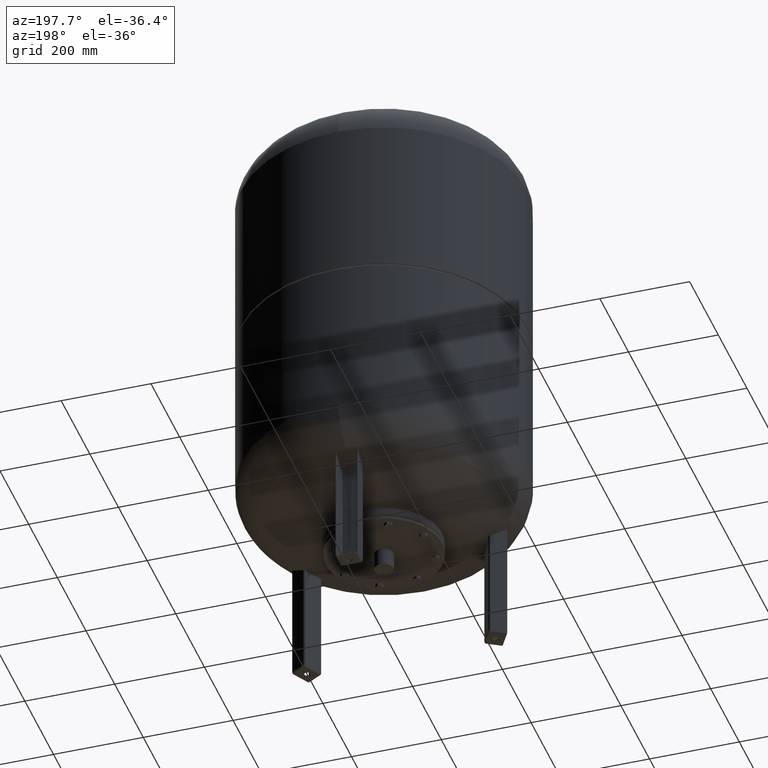
[diagram: clean part render]
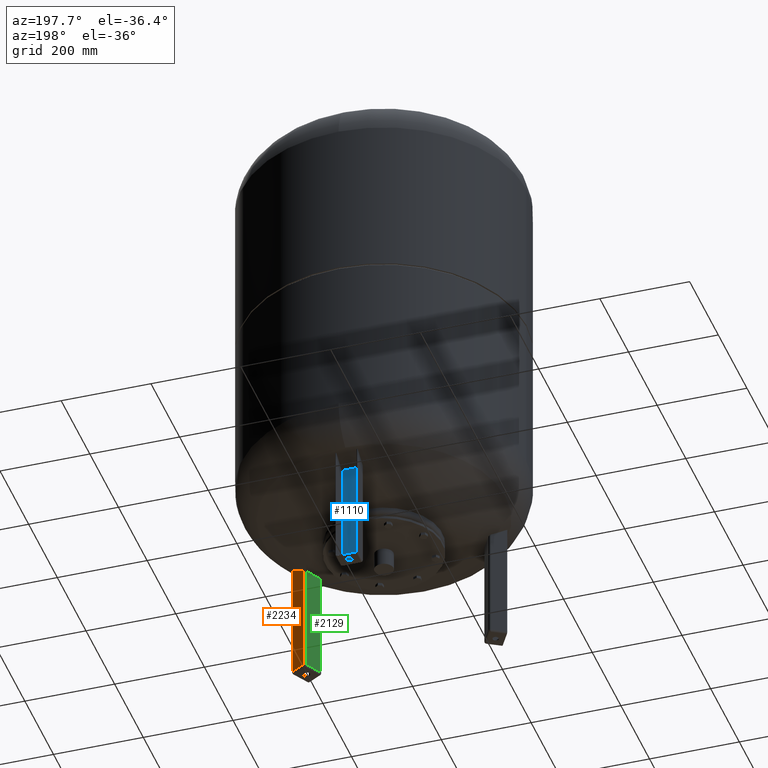
[diagram: same view with three faces highlighted in distinct colors, each labeled with its STEP entity id]
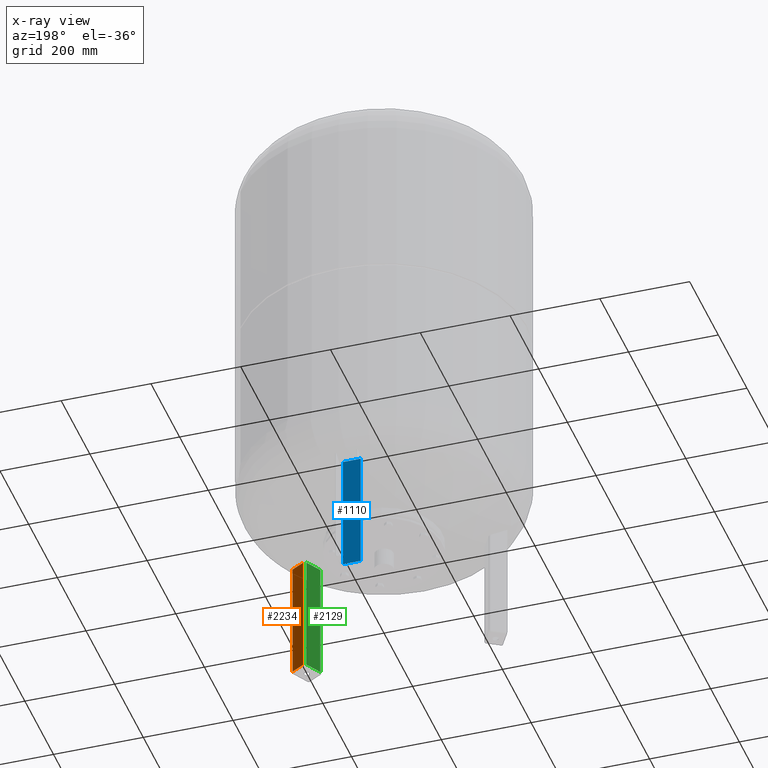
[diagram: x-ray of the same camera — body ghosted, the three highlighted faces saturated]
A machine part, auxiliary view with three faces highlighted in distinct colors.
The next image is the same camera in x-ray (body ghosted, the three faces saturated) — at least one of them is partly hidden behind the body in this view.
Their STEP definitions:

[orange] entity #2234 — the highlighted planar face has unit normal (0.5, 0.866, 0).
#1296=CARTESIAN_POINT('',(238.965643089630700,-109.099364905389110,274.0));
#1297=VERTEX_POINT('',#1296);
#1305=CARTESIAN_POINT('',(209.520779360959780,-92.099364905389081,274.0));
#1306=VERTEX_POINT('',#1305);
#1307=CARTESIAN_POINT('',(209.520779360959780,-92.099364905389081,274.0));
#1308=DIRECTION('',(0.866025403784438,-0.500000000000001,0.0));
#1309=VECTOR('',#1308,34.000000000000021);
#1310=LINE('',#1307,#1309);
#1311=EDGE_CURVE('',#1306,#1297,#1310,.T.);
#1741=CARTESIAN_POINT('',(238.965643089630700,-109.099364905389090,5.000000000000004));
#1742=VERTEX_POINT('',#1741);
#1769=CARTESIAN_POINT('',(238.965643089630700,-109.099364905389090,5.000000000000004));
#1770=DIRECTION('',(0.0,0.0,1.0));
#1771=VECTOR('',#1770,269.0);
#1772=LINE('',#1769,#1771);
#1773=EDGE_CURVE('',#1742,#1297,#1772,.T.);
#1969=CARTESIAN_POINT('',(209.520779360959780,-92.099364905389081,5.000000000000004));
#1970=VERTEX_POINT('',#1969);
#1978=CARTESIAN_POINT('',(209.520779360959780,-92.099364905389081,5.000000000000004));
#1979=DIRECTION('',(0.866025403784439,-0.500000000000000,0.0));
#1980=VECTOR('',#1979,34.000000000000014);
#1981=LINE('',#1978,#1980);
#1982=EDGE_CURVE('',#1970,#1742,#1981,.T.);
#2104=CARTESIAN_POINT('',(209.520779360959780,-92.099364905389081,5.000000000000004));
#2105=DIRECTION('',(0.0,0.0,1.0));
#2106=VECTOR('',#2105,269.0);
#2107=LINE('',#2104,#2106);
#2108=EDGE_CURVE('',#1970,#1306,#2107,.T.);
#2223=CARTESIAN_POINT('',(205.190652342037590,-89.599364905389081,4.592425E-015));
#2224=DIRECTION('',(0.500000000000000,0.866025403784438,1.836970E-016));
#2225=DIRECTION('',(-0.866025403784438,0.500000000000000,-3.059170E-032));
#2226=AXIS2_PLACEMENT_3D('',#2223,#2224,#2225);
#2227=PLANE('',#2226);
#2228=ORIENTED_EDGE('',*,*,#1773,.F.);
#2229=ORIENTED_EDGE('',*,*,#1982,.F.);
#2230=ORIENTED_EDGE('',*,*,#2108,.T.);
#2231=ORIENTED_EDGE('',*,*,#1311,.T.);
#2232=EDGE_LOOP('',(#2228,#2229,#2230,#2231));
#2233=FACE_OUTER_BOUND('',#2232,.T.);
#2234=ADVANCED_FACE('',(#2233),#2227,.T.);

[blue] entity #1110 — the highlighted planar face has unit normal (0, -1, 0).
#199=CARTESIAN_POINT('',(20.0,225.0,274.0));
#200=VERTEX_POINT('',#199);
#208=CARTESIAN_POINT('',(-20.0,225.0,274.0));
#209=VERTEX_POINT('',#208);
#210=CARTESIAN_POINT('',(-20.0,225.0,274.0));
#211=DIRECTION('',(1.0,0.0,0.0));
#212=VECTOR('',#211,40.0);
#213=LINE('',#210,#212);
#214=EDGE_CURVE('',#209,#200,#213,.T.);
#751=CARTESIAN_POINT('',(-19.999999999999996,225.0,4.500000000000004));
#752=VERTEX_POINT('',#751);
#760=CARTESIAN_POINT('',(20.000000000000004,225.0,4.499999999999996));
#761=VERTEX_POINT('',#760);
#762=CARTESIAN_POINT('',(-19.999999999999996,225.0,4.500000000000004));
#763=DIRECTION('',(1.0,0.0,0.0));
#764=VECTOR('',#763,40.0);
#765=LINE('',#762,#764);
#766=EDGE_CURVE('',#752,#761,#765,.T.);
#1083=CARTESIAN_POINT('',(20.000000000000004,225.0,4.499999999999996));
#1084=DIRECTION('',(0.0,0.0,1.0));
#1085=VECTOR('',#1084,269.500000000000000);
#1086=LINE('',#1083,#1085);
#1087=EDGE_CURVE('',#761,#200,#1086,.T.);
#1094=CARTESIAN_POINT('',(22.500000000000004,225.0,1.999999999999996));
#1095=DIRECTION('',(0.0,-1.0,0.0));
#1096=DIRECTION('',(1.0,0.0,0.0));
#1097=AXIS2_PLACEMENT_3D('',#1094,#1095,#1096);
#1098=PLANE('',#1097);
#1099=ORIENTED_EDGE('',*,*,#766,.F.);
#1100=CARTESIAN_POINT('',(-20.0,225.0,274.0));
#1101=DIRECTION('',(0.0,0.0,-1.0));
#1102=VECTOR('',#1101,269.500000000000000);
#1103=LINE('',#1100,#1102);
#1104=EDGE_CURVE('',#209,#752,#1103,.T.);
#1105=ORIENTED_EDGE('',*,*,#1104,.F.);
#1106=ORIENTED_EDGE('',*,*,#214,.T.);
#1107=ORIENTED_EDGE('',*,*,#1087,.F.);
#1108=EDGE_LOOP('',(#1099,#1105,#1106,#1107));
#1109=FACE_OUTER_BOUND('',#1108,.T.);
#1110=ADVANCED_FACE('',(#1109),#1098,.F.);

[green] entity #2129 — the highlighted planar face has unit normal (-0.866, 0.5, -0).
#1313=CARTESIAN_POINT('',(202.690652342037590,-93.929491924311279,274.0));
#1314=VERTEX_POINT('',#1313);
#1322=CARTESIAN_POINT('',(182.690652342037590,-128.570508075688820,274.0));
#1323=VERTEX_POINT('',#1322);
#1324=CARTESIAN_POINT('',(182.690652342037590,-128.570508075688820,274.0));
#1325=DIRECTION('',(0.500000000000000,0.866025403784439,0.0));
#1326=VECTOR('',#1325,40.0);
#1327=LINE('',#1324,#1326);
#1328=EDGE_CURVE('',#1323,#1314,#1327,.T.);
#1994=CARTESIAN_POINT('',(182.690652342037590,-128.570508075688820,4.999999999999996));
#1995=VERTEX_POINT('',#1994);
#2003=CARTESIAN_POINT('',(202.690652342037590,-93.929491924311279,5.000000000000004));
#2004=VERTEX_POINT('',#2003);
#2005=CARTESIAN_POINT('',(182.690652342037590,-128.570508075688820,4.999999999999996));
#2006=DIRECTION('',(0.500000000000000,0.866025403784439,1.776357E-016));
#2007=VECTOR('',#2006,40.0);
#2008=LINE('',#2005,#2007);
#2009=EDGE_CURVE('',#1995,#2004,#2008,.T.);
#2097=CARTESIAN_POINT('',(202.690652342037590,-93.929491924311279,5.000000000000004));
#2098=DIRECTION('',(0.0,0.0,1.0));
#2099=VECTOR('',#2098,269.0);
#2100=LINE('',#2097,#2099);
#2101=EDGE_CURVE('',#2004,#1314,#2100,.T.);
#2113=CARTESIAN_POINT('',(180.190652342037590,-132.900635094611000,-4.592425E-015));
#2114=DIRECTION('',(-0.866025403784439,0.500000000000000,-5.710451E-032));
#2115=DIRECTION('',(-0.500000000000000,-0.866025403784438,-1.836970E-016));
#2116=AXIS2_PLACEMENT_3D('',#2113,#2114,#2115);
#2117=PLANE('',#2116);
#2118=ORIENTED_EDGE('',*,*,#2009,.F.);
#2119=CARTESIAN_POINT('',(182.690652342037590,-128.570508075688820,4.999999999999996));
#2120=DIRECTION('',(0.0,0.0,1.0));
#2121=VECTOR('',#2120,269.0);
#2122=LINE('',#2119,#2121);
#2123=EDGE_CURVE('',#1995,#1323,#2122,.T.);
#2124=ORIENTED_EDGE('',*,*,#2123,.T.);
#2125=ORIENTED_EDGE('',*,*,#1328,.T.);
#2126=ORIENTED_EDGE('',*,*,#2101,.F.);
#2127=EDGE_LOOP('',(#2118,#2124,#2125,#2126));
#2128=FACE_OUTER_BOUND('',#2127,.T.);
#2129=ADVANCED_FACE('',(#2128),#2117,.T.);